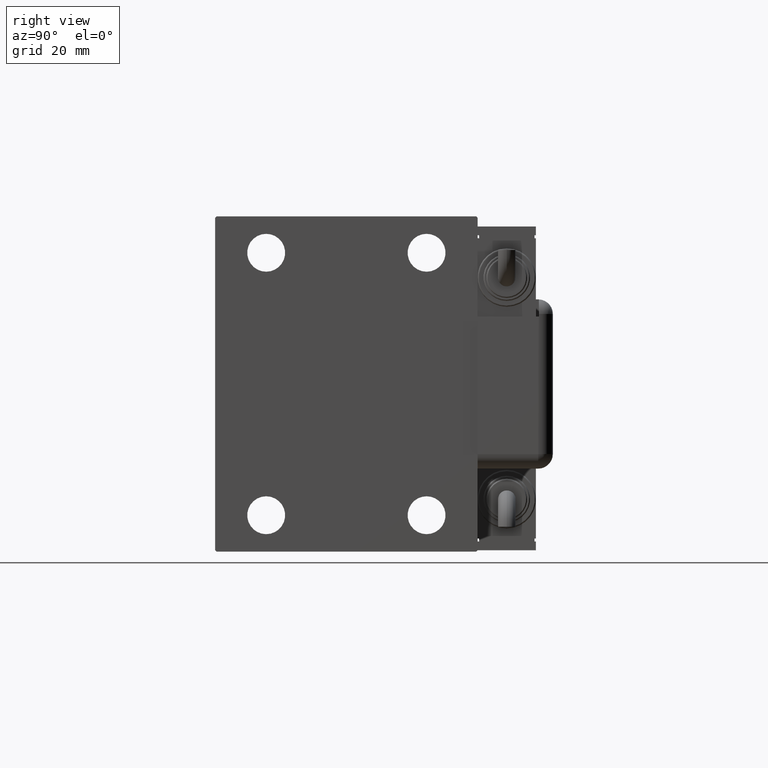
[diagram: clean part render]
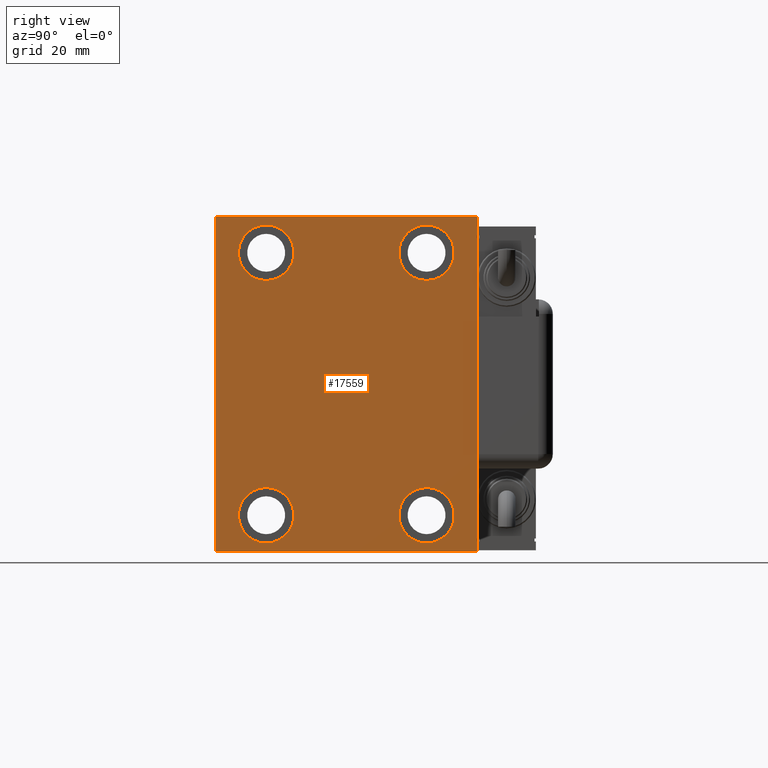
[diagram: same view with one face highlighted and labeled with its STEP entity id]
A machine part, right view. The second image highlights one B-rep face of the part: STEP entity #17559.
In plain terms, the highlighted planar face has unit normal (1, 0, 0).
Its self-contained STEP definition (entity closure, byte-faithful):
#85 = EDGE_CURVE ( 'NONE', #32696, #14210, #44481, .T. ) ;
#94 = VERTEX_POINT ( 'NONE', #36058 ) ;
#342 = CARTESIAN_POINT ( 'NONE',  ( 138.0000000000000000, -44.50000000000000000, -57.50000000000000711 ) ) ;
#438 = CIRCLE ( 'NONE', #9071, 9.500000000000001776 ) ;
#952 = EDGE_CURVE ( 'NONE', #15360, #19192, #49677, .T. ) ;
#1070 = AXIS2_PLACEMENT_3D ( 'NONE', #52641, #11397, #16794 ) ;
#1499 = DIRECTION ( 'NONE',  ( 0.000000000000000000, -0.7071067811865474617, -0.7071067811865474617 ) ) ;
#3073 = DIRECTION ( 'NONE',  ( 0.000000000000000000, 0.000000000000000000, 1.000000000000000000 ) ) ;
#3514 = DIRECTION ( 'NONE',  ( 0.000000000000000000, 0.000000000000000000, 1.000000000000000000 ) ) ;
#3672 = DIRECTION ( 'NONE',  ( -1.000000000000000000, -0.000000000000000000, -0.000000000000000000 ) ) ;
#4621 = ORIENTED_EDGE ( 'NONE', *, *, #952, .T. ) ;
#4886 = ORIENTED_EDGE ( 'NONE', *, *, #36580, .T. ) ;
#4954 = CIRCLE ( 'NONE', #12615, 9.500000000000001776 ) ;
#5094 = EDGE_LOOP ( 'NONE', ( #24479, #5280 ) ) ;
#5280 = ORIENTED_EDGE ( 'NONE', *, *, #36890, .T. ) ;
#5626 = CARTESIAN_POINT ( 'NONE',  ( 138.0000000000000000, 27.50000000000001066, 45.00000000000000711 ) ) ;
#5787 = VERTEX_POINT ( 'NONE', #13218 ) ;
#5947 = ORIENTED_EDGE ( 'NONE', *, *, #31704, .T. ) ;
#5985 = DIRECTION ( 'NONE',  ( -0.000000000000000000, 0.7071067811865474617, 0.7071067811865474617 ) ) ;
#6527 = EDGE_LOOP ( 'NONE', ( #24307, #19852, #4886, #46101, #17920, #51775, #20682, #48281 ) ) ;
#7090 = CIRCLE ( 'NONE', #17715, 9.500000000000001776 ) ;
#7383 = AXIS2_PLACEMENT_3D ( 'NONE', #54074, #44747, #3514 ) ;
#7931 = DIRECTION ( 'NONE',  ( 0.000000000000000000, 0.000000000000000000, -1.000000000000000000 ) ) ;
#8534 = FACE_BOUND ( 'NONE', #15227, .T. ) ;
#8693 = VECTOR ( 'NONE', #38978, 1000.000000000000000 ) ;
#8754 = EDGE_CURVE ( 'NONE', #15590, #22780, #13949, .T. ) ;
#9071 = AXIS2_PLACEMENT_3D ( 'NONE', #22336, #3672, #3073 ) ;
#9320 = DIRECTION ( 'NONE',  ( 0.000000000000000000, 0.000000000000000000, -1.000000000000000000 ) ) ;
#10211 = LINE ( 'NONE', #47225, #58811 ) ;
#11181 = VECTOR ( 'NONE', #58923, 1000.000000000000114 ) ;
#11397 = DIRECTION ( 'NONE',  ( -1.000000000000000000, -0.000000000000000000, -0.000000000000000000 ) ) ;
#11404 = LINE ( 'NONE', #38510, #35905 ) ;
#11826 = EDGE_CURVE ( 'NONE', #40516, #5787, #57181, .T. ) ;
#11853 = ORIENTED_EDGE ( 'NONE', *, *, #32271, .T. ) ;
#12344 = VECTOR ( 'NONE', #19864, 1000.000000000000000 ) ;
#12453 = DIRECTION ( 'NONE',  ( 0.000000000000000000, 0.000000000000000000, 1.000000000000000000 ) ) ;
#12615 = AXIS2_PLACEMENT_3D ( 'NONE', #35346, #49169, #12453 ) ;
#12749 = FACE_OUTER_BOUND ( 'NONE', #6527, .T. ) ;
#13078 = CARTESIAN_POINT ( 'NONE',  ( 138.0000000000000000, 27.50000000000001066, 35.50000000000000711 ) ) ;
#13218 = CARTESIAN_POINT ( 'NONE',  ( 138.0000000000000000, 45.00000000000000000, 56.99999999999997868 ) ) ;
#13546 = CARTESIAN_POINT ( 'NONE',  ( 138.0000000000000000, -45.00000000000000000, 57.49999999999999289 ) ) ;
#13643 = DIRECTION ( 'NONE',  ( 1.000000000000000000, 0.000000000000000000, 0.000000000000000000 ) ) ;
#13949 = LINE ( 'NONE', #58824, #40313 ) ;
#14210 = VERTEX_POINT ( 'NONE', #342 ) ;
#15227 = EDGE_LOOP ( 'NONE', ( #11853, #5947 ) ) ;
#15360 = VERTEX_POINT ( 'NONE', #26788 ) ;
#15590 = VERTEX_POINT ( 'NONE', #28568 ) ;
#15804 = CARTESIAN_POINT ( 'NONE',  ( 138.0000000000000000, -45.00000000000000000, -57.50000000000000711 ) ) ;
#16636 = DIRECTION ( 'NONE',  ( -1.000000000000000000, -0.000000000000000000, -0.000000000000000000 ) ) ;
#16794 = DIRECTION ( 'NONE',  ( 0.000000000000000000, 0.000000000000000000, 1.000000000000000000 ) ) ;
#17559 = ADVANCED_FACE ( 'NONE', ( #31421, #27196, #49777, #8534, #12749 ), #30816, .T. ) ;
#17580 = DIRECTION ( 'NONE',  ( 0.000000000000000000, -1.000000000000000000, -1.541976423090495387E-16 ) ) ;
#17715 = AXIS2_PLACEMENT_3D ( 'NONE', #35572, #39489, #48795 ) ;
#17920 = ORIENTED_EDGE ( 'NONE', *, *, #20820, .T. ) ;
#18205 = CARTESIAN_POINT ( 'NONE',  ( 138.0000000000000000, -27.50000000000000000, -54.49999999999998579 ) ) ;
#18719 = CIRCLE ( 'NONE', #52389, 9.500000000000001776 ) ;
#19192 = VERTEX_POINT ( 'NONE', #47093 ) ;
#19828 = VECTOR ( 'NONE', #29751, 1000.000000000000114 ) ;
#19852 = ORIENTED_EDGE ( 'NONE', *, *, #29780, .T. ) ;
#19864 = DIRECTION ( 'NONE',  ( 0.000000000000000000, -1.206764157201257045E-16, 1.000000000000000000 ) ) ;
#20682 = ORIENTED_EDGE ( 'NONE', *, *, #11826, .T. ) ;
#20820 = EDGE_CURVE ( 'NONE', #14210, #35852, #43488, .T. ) ;
#20902 = ORIENTED_EDGE ( 'NONE', *, *, #39495, .T. ) ;
#21552 = VERTEX_POINT ( 'NONE', #13078 ) ;
#21702 = AXIS2_PLACEMENT_3D ( 'NONE', #52485, #16636, #29609 ) ;
#22336 = CARTESIAN_POINT ( 'NONE',  ( 138.0000000000000000, -27.50000000000000000, -44.99999999999998579 ) ) ;
#22780 = VERTEX_POINT ( 'NONE', #24485 ) ;
#23132 = AXIS2_PLACEMENT_3D ( 'NONE', #54892, #13643, #7931 ) ;
#23544 = VECTOR ( 'NONE', #9320, 1000.000000000000000 ) ;
#24307 = ORIENTED_EDGE ( 'NONE', *, *, #8754, .T. ) ;
#24341 = CARTESIAN_POINT ( 'NONE',  ( 138.0000000000000000, -27.50000000000000000, -35.49999999999998579 ) ) ;
#24479 = ORIENTED_EDGE ( 'NONE', *, *, #44669, .T. ) ;
#24485 = CARTESIAN_POINT ( 'NONE',  ( 138.0000000000000000, -44.50000000000000000, 57.49999999999999289 ) ) ;
#26788 = CARTESIAN_POINT ( 'NONE',  ( 138.0000000000000000, -27.49999999999998934, 35.50000000000000711 ) ) ;
#27090 = DIRECTION ( 'NONE',  ( 0.000000000000000000, 0.000000000000000000, 1.000000000000000000 ) ) ;
#27196 = FACE_BOUND ( 'NONE', #40673, .T. ) ;
#28568 = CARTESIAN_POINT ( 'NONE',  ( 138.0000000000000000, 44.50000000000000000, 57.50000000000000711 ) ) ;
#29609 = DIRECTION ( 'NONE',  ( 0.000000000000000000, 0.000000000000000000, 1.000000000000000000 ) ) ;
#29751 = DIRECTION ( 'NONE',  ( -0.000000000000000000, -0.7071067811865474617, 0.7071067811865474617 ) ) ;
#29780 = EDGE_CURVE ( 'NONE', #22780, #94, #11404, .T. ) ;
#29789 = CARTESIAN_POINT ( 'NONE',  ( 138.0000000000000000, 45.00000000000001421, -57.50000000000000711 ) ) ;
#30816 = PLANE ( 'NONE',  #23132 ) ;
#31421 = FACE_BOUND ( 'NONE', #34290, .T. ) ;
#31704 = EDGE_CURVE ( 'NONE', #57018, #45057, #7090, .T. ) ;
#31897 = DIRECTION ( 'NONE',  ( -1.000000000000000000, -0.000000000000000000, -0.000000000000000000 ) ) ;
#32271 = EDGE_CURVE ( 'NONE', #45057, #57018, #438, .T. ) ;
#32696 = VERTEX_POINT ( 'NONE', #45944 ) ;
#33946 = VERTEX_POINT ( 'NONE', #50698 ) ;
#34290 = EDGE_LOOP ( 'NONE', ( #44289, #50214 ) ) ;
#34956 = CARTESIAN_POINT ( 'NONE',  ( 138.0000000000000000, 27.50000000000001066, 54.50000000000000711 ) ) ;
#35346 = CARTESIAN_POINT ( 'NONE',  ( 138.0000000000000000, 27.49999999999998934, -44.99999999999998579 ) ) ;
#35535 = EDGE_CURVE ( 'NONE', #33946, #45543, #35990, .T. ) ;
#35572 = CARTESIAN_POINT ( 'NONE',  ( 138.0000000000000000, -27.50000000000000000, -44.99999999999998579 ) ) ;
#35852 = VERTEX_POINT ( 'NONE', #52636 ) ;
#35905 = VECTOR ( 'NONE', #1499, 1000.000000000000114 ) ;
#35990 = CIRCLE ( 'NONE', #41774, 9.500000000000001776 ) ;
#36058 = CARTESIAN_POINT ( 'NONE',  ( 138.0000000000000000, -45.00000000000000000, 57.00000000000002132 ) ) ;
#36111 = CIRCLE ( 'NONE', #21702, 9.500000000000001776 ) ;
#36580 = EDGE_CURVE ( 'NONE', #94, #32696, #55382, .T. ) ;
#36890 = EDGE_CURVE ( 'NONE', #49302, #21552, #18719, .T. ) ;
#37542 = DIRECTION ( 'NONE',  ( 0.000000000000000000, 0.000000000000000000, 1.000000000000000000 ) ) ;
#38510 = CARTESIAN_POINT ( 'NONE',  ( 138.0000000000000000, -51.00000000000000711, 51.00000000000000711 ) ) ;
#38978 = DIRECTION ( 'NONE',  ( 0.000000000000000000, 1.000000000000000000, 0.000000000000000000 ) ) ;
#39489 = DIRECTION ( 'NONE',  ( -1.000000000000000000, -0.000000000000000000, -0.000000000000000000 ) ) ;
#39495 = EDGE_CURVE ( 'NONE', #19192, #15360, #36111, .T. ) ;
#40313 = VECTOR ( 'NONE', #17580, 1000.000000000000000 ) ;
#40516 = VERTEX_POINT ( 'NONE', #50050 ) ;
#40673 = EDGE_LOOP ( 'NONE', ( #4621, #20902 ) ) ;
#41774 = AXIS2_PLACEMENT_3D ( 'NONE', #50552, #31897, #27090 ) ;
#42353 = DIRECTION ( 'NONE',  ( -1.000000000000000000, -0.000000000000000000, -0.000000000000000000 ) ) ;
#42862 = EDGE_CURVE ( 'NONE', #45543, #33946, #4954, .T. ) ;
#43488 = LINE ( 'NONE', #15804, #8693 ) ;
#44289 = ORIENTED_EDGE ( 'NONE', *, *, #42862, .T. ) ;
#44481 = LINE ( 'NONE', #54110, #11181 ) ;
#44669 = EDGE_CURVE ( 'NONE', #21552, #49302, #52965, .T. ) ;
#44747 = DIRECTION ( 'NONE',  ( -1.000000000000000000, -0.000000000000000000, -0.000000000000000000 ) ) ;
#45057 = VERTEX_POINT ( 'NONE', #18205 ) ;
#45543 = VERTEX_POINT ( 'NONE', #53609 ) ;
#45944 = CARTESIAN_POINT ( 'NONE',  ( 138.0000000000000000, -45.00000000000000000, -57.00000000000000711 ) ) ;
#46101 = ORIENTED_EDGE ( 'NONE', *, *, #85, .T. ) ;
#47093 = CARTESIAN_POINT ( 'NONE',  ( 138.0000000000000000, -27.49999999999998934, 54.50000000000000711 ) ) ;
#47225 = CARTESIAN_POINT ( 'NONE',  ( 138.0000000000000000, 51.00000000000000711, -51.00000000000000711 ) ) ;
#47236 = EDGE_CURVE ( 'NONE', #35852, #40516, #10211, .T. ) ;
#48281 = ORIENTED_EDGE ( 'NONE', *, *, #58258, .T. ) ;
#48795 = DIRECTION ( 'NONE',  ( 0.000000000000000000, 0.000000000000000000, 1.000000000000000000 ) ) ;
#49169 = DIRECTION ( 'NONE',  ( -1.000000000000000000, -0.000000000000000000, -0.000000000000000000 ) ) ;
#49302 = VERTEX_POINT ( 'NONE', #34956 ) ;
#49677 = CIRCLE ( 'NONE', #7383, 9.500000000000001776 ) ;
#49777 = FACE_BOUND ( 'NONE', #5094, .T. ) ;
#50050 = CARTESIAN_POINT ( 'NONE',  ( 138.0000000000000000, 45.00000000000001421, -57.00000000000000711 ) ) ;
#50214 = ORIENTED_EDGE ( 'NONE', *, *, #35535, .T. ) ;
#50552 = CARTESIAN_POINT ( 'NONE',  ( 138.0000000000000000, 27.49999999999998934, -44.99999999999998579 ) ) ;
#50698 = CARTESIAN_POINT ( 'NONE',  ( 138.0000000000000000, 27.49999999999998934, -35.49999999999998579 ) ) ;
#51775 = ORIENTED_EDGE ( 'NONE', *, *, #47236, .T. ) ;
#52389 = AXIS2_PLACEMENT_3D ( 'NONE', #5626, #42353, #37542 ) ;
#52485 = CARTESIAN_POINT ( 'NONE',  ( 138.0000000000000000, -27.49999999999998934, 45.00000000000000711 ) ) ;
#52626 = CARTESIAN_POINT ( 'NONE',  ( 138.0000000000000000, 51.00000000000000000, 51.00000000000000000 ) ) ;
#52636 = CARTESIAN_POINT ( 'NONE',  ( 138.0000000000000000, 44.49999999999998579, -57.50000000000000711 ) ) ;
#52641 = CARTESIAN_POINT ( 'NONE',  ( 138.0000000000000000, 27.50000000000001066, 45.00000000000000711 ) ) ;
#52965 = CIRCLE ( 'NONE', #1070, 9.500000000000001776 ) ;
#53609 = CARTESIAN_POINT ( 'NONE',  ( 138.0000000000000000, 27.49999999999998934, -54.49999999999998579 ) ) ;
#54074 = CARTESIAN_POINT ( 'NONE',  ( 138.0000000000000000, -27.49999999999998934, 45.00000000000000711 ) ) ;
#54110 = CARTESIAN_POINT ( 'NONE',  ( 138.0000000000000000, -51.00000000000000000, -51.00000000000000000 ) ) ;
#54892 = CARTESIAN_POINT ( 'NONE',  ( 138.0000000000000000, 0.000000000000000000, 0.000000000000000000 ) ) ;
#55382 = LINE ( 'NONE', #13546, #23544 ) ;
#57018 = VERTEX_POINT ( 'NONE', #24341 ) ;
#57140 = LINE ( 'NONE', #52626, #19828 ) ;
#57181 = LINE ( 'NONE', #29789, #12344 ) ;
#58258 = EDGE_CURVE ( 'NONE', #5787, #15590, #57140, .T. ) ;
#58811 = VECTOR ( 'NONE', #5985, 1000.000000000000114 ) ;
#58824 = CARTESIAN_POINT ( 'NONE',  ( 138.0000000000000000, 45.00000000000000000, 57.50000000000000711 ) ) ;
#58923 = DIRECTION ( 'NONE',  ( -0.000000000000000000, 0.7071067811865474617, -0.7071067811865474617 ) ) ;